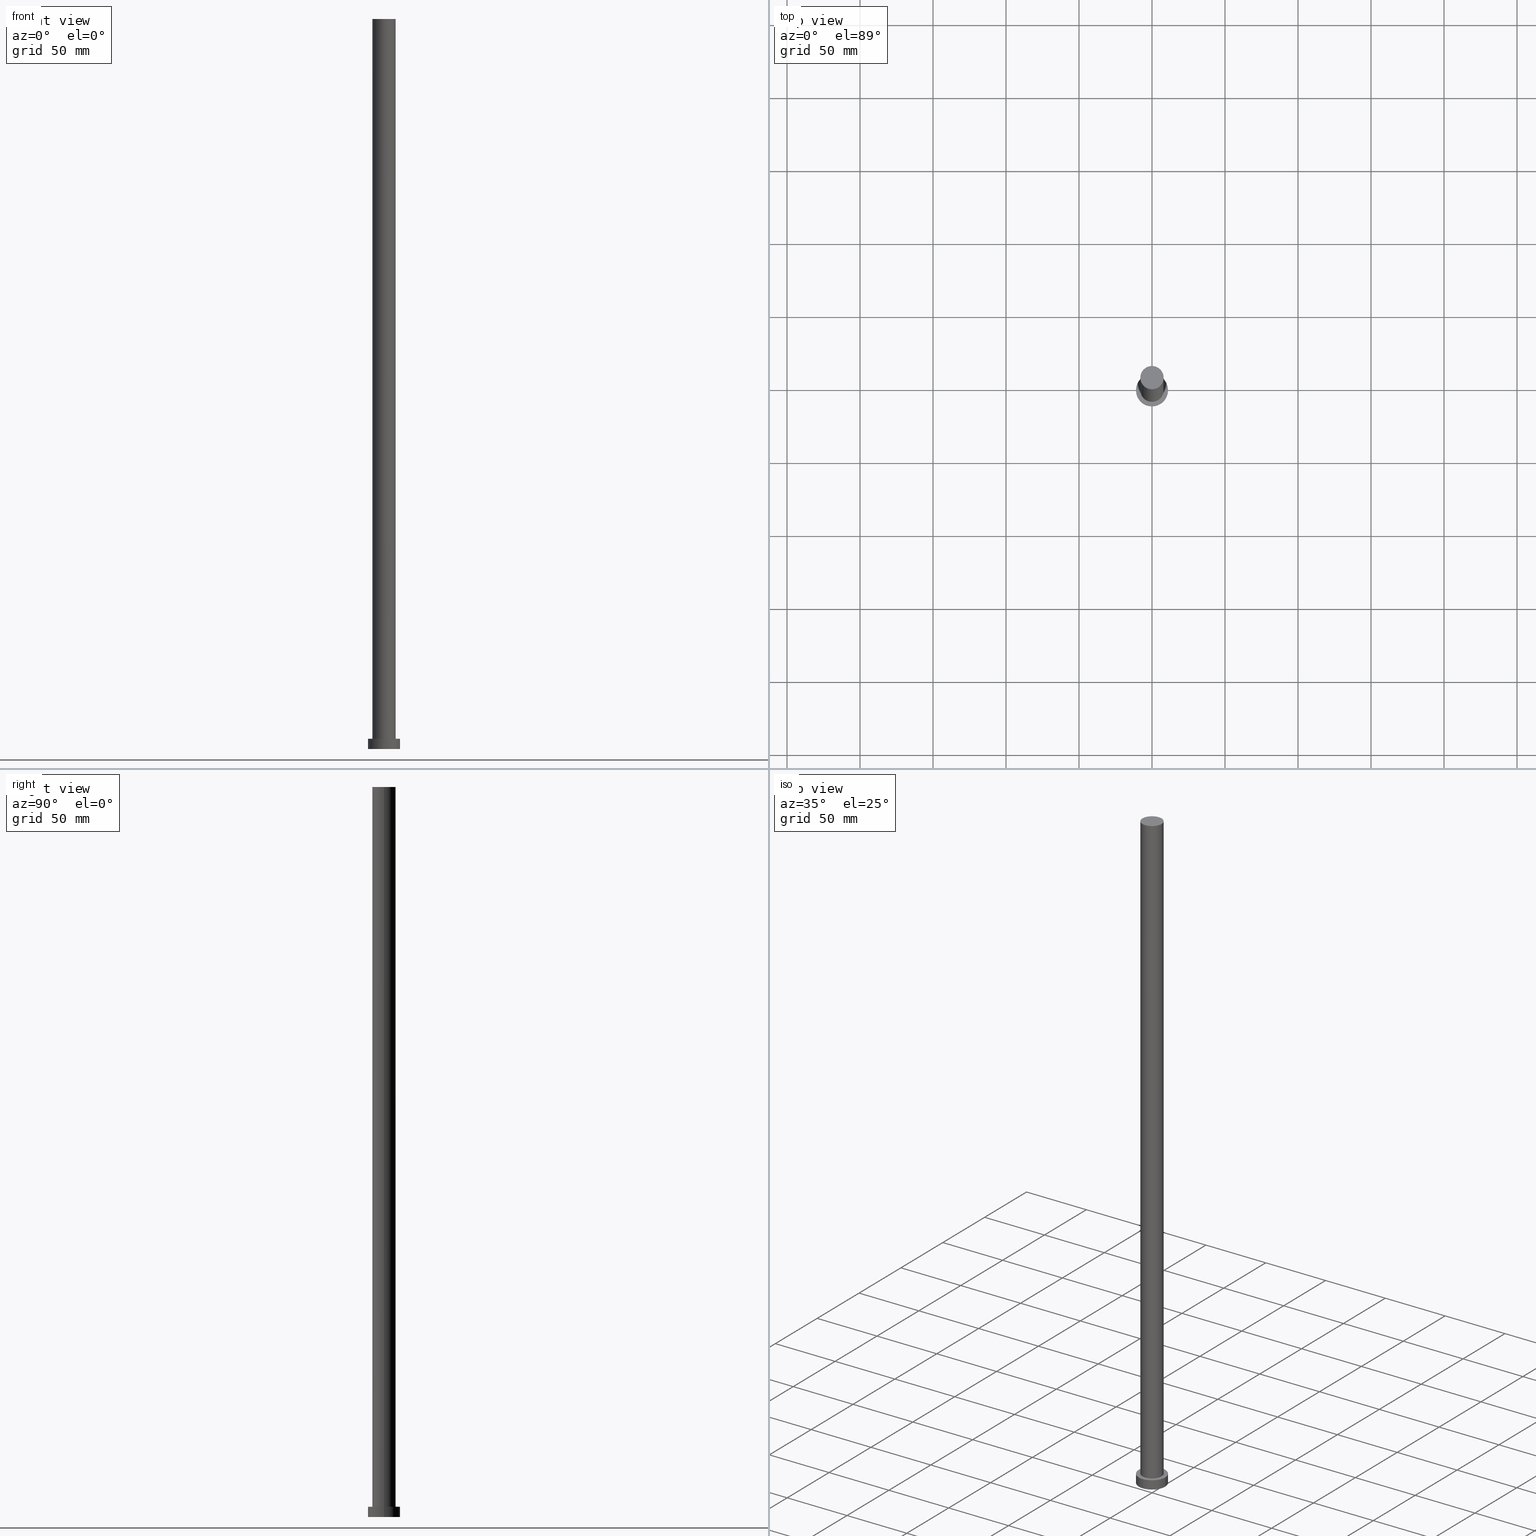
[diagram: canonical four-view strip — front | top / right | iso, engineering-drawing reading convention]
A machine part, canonical four-view strip (front | top / right | iso — engineering-drawing reading convention). The complete STEP part file that produces these views, byte-faithful:
ISO-10303-21;
HEADER;
FILE_DESCRIPTION (( 'STEP AP203' ),
    '1' );
FILE_NAME ('4d6a.STEP',
    '2023-02-12T10:43:09',
    ( '' ),
    ( '' ),
    'SwSTEP 2.0',
    'SolidWorks 2019',
    '' );
FILE_SCHEMA (( 'CONFIG_CONTROL_DESIGN' ));
ENDSEC;

DATA;
#1 = PERSON_AND_ORGANIZATION_ROLE ( 'creator' ) ;
#2 = CC_DESIGN_SECURITY_CLASSIFICATION ( #72, ( #66 ) ) ;
#3 = DATE_TIME_ROLE ( 'creation_date' ) ;
#4 = APPROVAL_PERSON_ORGANIZATION ( #105, #237, #182 ) ;
#5 = EDGE_CURVE ( 'NONE', #201, #11, #121, .T. ) ;
#6 = AXIS2_PLACEMENT_3D ( 'NONE', #30, #228, #52 ) ;
#7 = CARTESIAN_POINT ( 'NONE',  ( 8.000000000000000000, 9.797174393178825657E-16, 7.000000000000000000 ) ) ;
#8 = DIRECTION ( 'NONE',  ( 1.000000000000000000, 0.000000000000000000, 0.000000000000000000 ) ) ;
#9 = APPROVAL_PERSON_ORGANIZATION ( #88, #254, #101 ) ;
#10 = ORIENTED_EDGE ( 'NONE', *, *, #193, .F. ) ;
#11 = VERTEX_POINT ( 'NONE', #206 ) ;
#12 = EDGE_CURVE ( 'NONE', #122, #62, #212, .T. ) ;
#13 = VECTOR ( 'NONE', #27, 1000.000000000000000 ) ;
#14 = DIRECTION ( 'NONE',  ( 0.000000000000000000, 0.000000000000000000, 1.000000000000000000 ) ) ;
#15 = CIRCLE ( 'NONE', #170, 11.00000000000000000 ) ;
#16 = DIRECTION ( 'NONE',  ( 0.000000000000000000, 0.000000000000000000, 1.000000000000000000 ) ) ;
#17 = LOCAL_TIME ( 11, 43, 9.000000000000000000, #40 ) ;
#18 = PERSON_AND_ORGANIZATION_ROLE ( 'creator' ) ;
#19 = EDGE_LOOP ( 'NONE', ( #240, #221 ) ) ;
#20 = APPROVAL_ROLE ( '' ) ;
#21 = EDGE_LOOP ( 'NONE', ( #47, #215, #167, #91 ) ) ;
#22 = LOCAL_TIME ( 11, 43, 9.000000000000000000, #217 ) ;
#23 = APPROVAL_STATUS ( 'not_yet_approved' ) ;
#24 = ADVANCED_FACE ( 'NONE', ( #94 ), #250, .T. ) ;
#25 = CALENDAR_DATE ( 2023, 12, 2 ) ;
#26 = CARTESIAN_POINT ( 'NONE',  ( 0.000000000000000000, 0.000000000000000000, 500.0000000000000000 ) ) ;
#27 = DIRECTION ( 'NONE',  ( -0.000000000000000000, -0.000000000000000000, -1.000000000000000000 ) ) ;
#28 = AXIS2_PLACEMENT_3D ( 'NONE', #48, #196, #55 ) ;
#29 = CARTESIAN_POINT ( 'NONE',  ( 11.00000000000000000, 1.347111479062088405E-15, 7.000000000000000000 ) ) ;
#30 = CARTESIAN_POINT ( 'NONE',  ( 0.000000000000000000, 0.000000000000000000, 0.000000000000000000 ) ) ;
#31 = CARTESIAN_POINT ( 'NONE',  ( 0.000000000000000000, 0.000000000000000000, 0.000000000000000000 ) ) ;
#32 = LOCAL_TIME ( 11, 43, 9.000000000000000000, #102 ) ;
#33 = ORIENTED_EDGE ( 'NONE', *, *, #5, .F. ) ;
#34 = DIRECTION ( 'NONE',  ( -1.000000000000000000, 0.000000000000000000, 0.000000000000000000 ) ) ;
#35 = EDGE_CURVE ( 'NONE', #11, #201, #15, .T. ) ;
#36 = DIRECTION ( 'NONE',  ( 1.000000000000000000, 0.000000000000000000, 0.000000000000000000 ) ) ;
#37 = CIRCLE ( 'NONE', #195, 8.000000000000000000 ) ;
#38 =( LENGTH_UNIT ( ) NAMED_UNIT ( * ) SI_UNIT ( .MILLI., .METRE. ) );
#39 = ADVANCED_FACE ( 'NONE', ( #148 ), #245, .T. ) ;
#40 = COORDINATED_UNIVERSAL_TIME_OFFSET ( 1, 0, .AHEAD. ) ;
#41 = CC_DESIGN_APPROVAL ( #254, ( #66 ) ) ;
#42 = PERSON_AND_ORGANIZATION_ROLE ( 'design_owner' ) ;
#43 = VERTEX_POINT ( 'NONE', #128 ) ;
#44 = CARTESIAN_POINT ( 'NONE',  ( -8.000000000000000000, 0.000000000000000000, 500.0000000000000000 ) ) ;
#45 = PERSON_AND_ORGANIZATION_ROLE ( 'classification_officer' ) ;
#46 = APPLICATION_PROTOCOL_DEFINITION ( 'international standard', 'config_control_design', 1994, #133 ) ;
#47 = ORIENTED_EDGE ( 'NONE', *, *, #235, .F. ) ;
#48 = CARTESIAN_POINT ( 'NONE',  ( 0.000000000000000000, 0.000000000000000000, 500.0000000000000000 ) ) ;
#49 = CARTESIAN_POINT ( 'NONE',  ( 0.000000000000000000, 0.000000000000000000, 7.000000000000000000 ) ) ;
#50 = CIRCLE ( 'NONE', #147, 8.000000000000000000 ) ;
#51 = AXIS2_PLACEMENT_3D ( 'NONE', #152, #246, #69 ) ;
#52 = DIRECTION ( 'NONE',  ( 1.000000000000000000, 0.000000000000000000, 0.000000000000000000 ) ) ;
#53 = ORIENTED_EDGE ( 'NONE', *, *, #220, .T. ) ;
#54 = CARTESIAN_POINT ( 'NONE',  ( 0.000000000000000000, 0.000000000000000000, 500.0000000000000000 ) ) ;
#55 = DIRECTION ( 'NONE',  ( 1.000000000000000000, 0.000000000000000000, 0.000000000000000000 ) ) ;
#56 = EDGE_CURVE ( 'NONE', #144, #127, #37, .T. ) ;
#57 = MECHANICAL_CONTEXT ( 'NONE', #78, 'mechanical' ) ;
#58 = SHAPE_DEFINITION_REPRESENTATION ( #123, #115 ) ;
#59 = ORGANIZATION ( 'NEUR�EN�', 'NEUR�EN�', '' ) ;
#60 = EDGE_LOOP ( 'NONE', ( #178, #181 ) ) ;
#61 = APPROVAL_DATE_TIME ( #90, #95 ) ;
#62 = VERTEX_POINT ( 'NONE', #109 ) ;
#63 = DATE_AND_TIME ( #175, #32 ) ;
#64 = DIRECTION ( 'NONE',  ( -0.000000000000000000, -0.000000000000000000, -1.000000000000000000 ) ) ;
#65 = COORDINATED_UNIVERSAL_TIME_OFFSET ( 1, 0, .AHEAD. ) ;
#66 = PRODUCT_DEFINITION_FORMATION_WITH_SPECIFIED_SOURCE ( 'LIBOVOLN�', '', #160, .NOT_KNOWN. ) ;
#67 = ADVANCED_FACE ( 'NONE', ( #68, #189 ), #75, .T. ) ;
#68 = FACE_BOUND ( 'NONE', #60, .T. ) ;
#69 = DIRECTION ( 'NONE',  ( -1.000000000000000000, 0.000000000000000000, 0.000000000000000000 ) ) ;
#70 = EDGE_LOOP ( 'NONE', ( #111, #10, #229, #140 ) ) ;
#71 = EDGE_LOOP ( 'NONE', ( #242, #126, #203, #161 ) ) ;
#72 = SECURITY_CLASSIFICATION ( '', '', #243 ) ;
#73 = CARTESIAN_POINT ( 'NONE',  ( 11.00000000000000000, 1.347111479062088405E-15, 7.000000000000000000 ) ) ;
#74 = VECTOR ( 'NONE', #107, 1000.000000000000000 ) ;
#75 = PLANE ( 'NONE',  #227 ) ;
#76 = APPROVAL_STATUS ( 'not_yet_approved' ) ;
#77 = EDGE_CURVE ( 'NONE', #43, #127, #164, .T. ) ;
#78 = APPLICATION_CONTEXT ( 'configuration controlled 3d designs of mechanical parts and assemblies' ) ;
#79 = DIRECTION ( 'NONE',  ( 1.000000000000000000, 0.000000000000000000, -0.000000000000000000 ) ) ;
#80 = CALENDAR_DATE ( 2023, 12, 2 ) ;
#81 = APPROVAL_PERSON_ORGANIZATION ( #137, #95, #20 ) ;
#82 = EDGE_LOOP ( 'NONE', ( #210, #168, #87, #132 ) ) ;
#83 = EDGE_LOOP ( 'NONE', ( #53, #149 ) ) ;
#84 = AXIS2_PLACEMENT_3D ( 'NONE', #54, #187, #34 ) ;
#85 = DATE_TIME_ROLE ( 'classification_date' ) ;
#86 = DIRECTION ( 'NONE',  ( -0.000000000000000000, -0.000000000000000000, -1.000000000000000000 ) ) ;
#87 = ORIENTED_EDGE ( 'NONE', *, *, #5, .T. ) ;
#88 = PERSON_AND_ORGANIZATION ( #118, #59 ) ;
#89 = ADVANCED_FACE ( 'NONE', ( #241 ), #184, .T. ) ;
#90 = DATE_AND_TIME ( #239, #226 ) ;
#91 = ORIENTED_EDGE ( 'NONE', *, *, #35, .T. ) ;
#92 = ORIENTED_EDGE ( 'NONE', *, *, #35, .F. ) ;
#93 = CARTESIAN_POINT ( 'NONE',  ( -11.00000000000000000, 0.000000000000000000, 7.000000000000000000 ) ) ;
#94 = FACE_OUTER_BOUND ( 'NONE', #21, .T. ) ;
#95 = APPROVAL ( #157, 'NEUR�EN�' ) ;
#96 = CARTESIAN_POINT ( 'NONE',  ( 11.00000000000000000, 1.347111479062088405E-15, 0.000000000000000000 ) ) ;
#97 = PLANE ( 'NONE',  #159 ) ;
#98 = AXIS2_PLACEMENT_3D ( 'NONE', #166, #192, #8 ) ;
#99 = CARTESIAN_POINT ( 'NONE',  ( 0.000000000000000000, 0.000000000000000000, 7.000000000000000000 ) ) ;
#100 = CARTESIAN_POINT ( 'NONE',  ( 0.000000000000000000, 0.000000000000000000, 7.000000000000000000 ) ) ;
#101 = APPROVAL_ROLE ( '' ) ;
#102 = COORDINATED_UNIVERSAL_TIME_OFFSET ( 1, 0, .AHEAD. ) ;
#103 = EDGE_LOOP ( 'NONE', ( #92, #33 ) ) ;
#104 = DATE_AND_TIME ( #25, #17 ) ;
#105 = PERSON_AND_ORGANIZATION ( #118, #59 ) ;
#106 = CC_DESIGN_PERSON_AND_ORGANIZATION_ASSIGNMENT ( #255, #18, ( #150 ) ) ;
#107 = DIRECTION ( 'NONE',  ( -0.000000000000000000, -0.000000000000000000, -1.000000000000000000 ) ) ;
#108 = CC_DESIGN_APPROVAL ( #237, ( #150 ) ) ;
#109 = CARTESIAN_POINT ( 'NONE',  ( -11.00000000000000000, 0.000000000000000000, 7.000000000000000000 ) ) ;
#110 = MANIFOLD_SOLID_BREP ( 'P�idat vysunut�m3', #231 ) ;
#111 = ORIENTED_EDGE ( 'NONE', *, *, #177, .F. ) ;
#112 = FACE_OUTER_BOUND ( 'NONE', #103, .T. ) ;
#113 = LINE ( 'NONE', #73, #169 ) ;
#114 = CC_DESIGN_APPROVAL ( #95, ( #72 ) ) ;
#115 = ADVANCED_BREP_SHAPE_REPRESENTATION ( '4d6a', ( #110, #153 ), #214 ) ;
#116 = ADVANCED_FACE ( 'NONE', ( #142 ), #165, .T. ) ;
#117 = DIRECTION ( 'NONE',  ( 1.000000000000000000, 0.000000000000000000, -0.000000000000000000 ) ) ;
#118 = PERSON ( 'NEUR�EN�', 'NEUR�EN�', 'NEUR�EN�', ('NEUR�EN�'), ('NEUR�EN�'), ('NEUR�EN�') ) ;
#119 = CC_DESIGN_PERSON_AND_ORGANIZATION_ASSIGNMENT ( #162, #163, ( #66 ) ) ;
#120 = DATE_AND_TIME ( #143, #22 ) ;
#121 = CIRCLE ( 'NONE', #6, 11.00000000000000000 ) ;
#122 = VERTEX_POINT ( 'NONE', #29 ) ;
#123 = PRODUCT_DEFINITION_SHAPE ( 'NONE', 'NONE',  #150 ) ;
#124 = PERSON_AND_ORGANIZATION ( #118, #59 ) ;
#125 = CIRCLE ( 'NONE', #28, 8.000000000000000000 ) ;
#126 = ORIENTED_EDGE ( 'NONE', *, *, #177, .T. ) ;
#127 = VERTEX_POINT ( 'NONE', #186 ) ;
#128 = CARTESIAN_POINT ( 'NONE',  ( -8.000000000000000000, 0.000000000000000000, 500.0000000000000000 ) ) ;
#129 = CC_DESIGN_PERSON_AND_ORGANIZATION_ASSIGNMENT ( #183, #1, ( #66 ) ) ;
#130 = DIRECTION ( 'NONE',  ( 0.000000000000000000, 0.000000000000000000, 1.000000000000000000 ) ) ;
#131 = LINE ( 'NONE', #249, #74 ) ;
#132 = ORIENTED_EDGE ( 'NONE', *, *, #141, .F. ) ;
#133 = APPLICATION_CONTEXT ( 'configuration controlled 3d designs of mechanical parts and assemblies' ) ;
#134 =( NAMED_UNIT ( * ) SI_UNIT ( $, .STERADIAN. ) SOLID_ANGLE_UNIT ( ) );
#135 = EDGE_CURVE ( 'NONE', #218, #43, #238, .T. ) ;
#136 = DIRECTION ( 'NONE',  ( -0.000000000000000000, -0.000000000000000000, -1.000000000000000000 ) ) ;
#137 = PERSON_AND_ORGANIZATION ( #118, #59 ) ;
#138 = CC_DESIGN_DATE_AND_TIME_ASSIGNMENT ( #219, #85, ( #72 ) ) ;
#139 = PERSON_AND_ORGANIZATION ( #118, #59 ) ;
#140 = ORIENTED_EDGE ( 'NONE', *, *, #225, .T. ) ;
#141 = EDGE_CURVE ( 'NONE', #62, #11, #190, .T. ) ;
#142 = FACE_OUTER_BOUND ( 'NONE', #19, .T. ) ;
#143 = CALENDAR_DATE ( 2023, 12, 2 ) ;
#144 = VERTEX_POINT ( 'NONE', #7 ) ;
#145 = DIRECTION ( 'NONE',  ( 0.000000000000000000, 0.000000000000000000, 1.000000000000000000 ) ) ;
#146 = DIRECTION ( 'NONE',  ( 1.000000000000000000, 0.000000000000000000, 0.000000000000000000 ) ) ;
#147 = AXIS2_PLACEMENT_3D ( 'NONE', #252, #155, #36 ) ;
#148 = FACE_OUTER_BOUND ( 'NONE', #70, .T. ) ;
#149 = ORIENTED_EDGE ( 'NONE', *, *, #12, .T. ) ;
#150 = PRODUCT_DEFINITION ( 'NEZN�M�', '', #66, #224 ) ;
#151 = DIRECTION ( 'NONE',  ( 1.000000000000000000, 0.000000000000000000, 0.000000000000000000 ) ) ;
#152 = CARTESIAN_POINT ( 'NONE',  ( 0.000000000000000000, 0.000000000000000000, 7.000000000000000000 ) ) ;
#153 = AXIS2_PLACEMENT_3D ( 'NONE', #197, #174, #253 ) ;
#154 = CARTESIAN_POINT ( 'NONE',  ( 8.000000000000000000, 9.797174393178825657E-16, 500.0000000000000000 ) ) ;
#155 = DIRECTION ( 'NONE',  ( 0.000000000000000000, 0.000000000000000000, 1.000000000000000000 ) ) ;
#156 = DIRECTION ( 'NONE',  ( -0.000000000000000000, -0.000000000000000000, -1.000000000000000000 ) ) ;
#157 = APPROVAL_STATUS ( 'not_yet_approved' ) ;
#158 = CC_DESIGN_PERSON_AND_ORGANIZATION_ASSIGNMENT ( #124, #45, ( #72 ) ) ;
#159 = AXIS2_PLACEMENT_3D ( 'NONE', #191, #16, #117 ) ;
#160 = PRODUCT ( '4d6a', '4d6a', '', ( #57 ) ) ;
#161 = ORIENTED_EDGE ( 'NONE', *, *, #77, .F. ) ;
#162 = PERSON_AND_ORGANIZATION ( #118, #59 ) ;
#163 = PERSON_AND_ORGANIZATION_ROLE ( 'design_supplier' ) ;
#164 = LINE ( 'NONE', #44, #180 ) ;
#165 = PLANE ( 'NONE',  #247 ) ;
#166 = CARTESIAN_POINT ( 'NONE',  ( 0.000000000000000000, 0.000000000000000000, 7.000000000000000000 ) ) ;
#167 = ORIENTED_EDGE ( 'NONE', *, *, #141, .T. ) ;
#168 = ORIENTED_EDGE ( 'NONE', *, *, #235, .T. ) ;
#169 = VECTOR ( 'NONE', #156, 1000.000000000000000 ) ;
#170 = AXIS2_PLACEMENT_3D ( 'NONE', #31, #130, #230 ) ;
#171 = DIRECTION ( 'NONE',  ( 1.000000000000000000, 0.000000000000000000, 0.000000000000000000 ) ) ;
#172 = FACE_OUTER_BOUND ( 'NONE', #82, .T. ) ;
#173 = AXIS2_PLACEMENT_3D ( 'NONE', #99, #14, #171 ) ;
#174 = DIRECTION ( 'NONE',  ( 0.000000000000000000, 0.000000000000000000, 1.000000000000000000 ) ) ;
#175 = CALENDAR_DATE ( 2023, 12, 2 ) ;
#176 = APPROVAL_DATE_TIME ( #104, #237 ) ;
#177 = EDGE_CURVE ( 'NONE', #218, #144, #131, .T. ) ;
#178 = ORIENTED_EDGE ( 'NONE', *, *, #225, .F. ) ;
#179 = COORDINATED_UNIVERSAL_TIME_OFFSET ( 1, 0, .AHEAD. ) ;
#180 = VECTOR ( 'NONE', #86, 1000.000000000000000 ) ;
#181 = ORIENTED_EDGE ( 'NONE', *, *, #56, .F. ) ;
#182 = APPROVAL_ROLE ( '' ) ;
#183 = PERSON_AND_ORGANIZATION ( #118, #59 ) ;
#184 = CYLINDRICAL_SURFACE ( 'NONE', #207, 8.000000000000000000 ) ;
#185 = CARTESIAN_POINT ( 'NONE',  ( 0.000000000000000000, 0.000000000000000000, 500.0000000000000000 ) ) ;
#186 = CARTESIAN_POINT ( 'NONE',  ( -8.000000000000000000, 0.000000000000000000, 7.000000000000000000 ) ) ;
#187 = DIRECTION ( 'NONE',  ( -0.000000000000000000, -0.000000000000000000, -1.000000000000000000 ) ) ;
#188 = AXIS2_PLACEMENT_3D ( 'NONE', #100, #136, #213 ) ;
#189 = FACE_OUTER_BOUND ( 'NONE', #83, .T. ) ;
#190 = LINE ( 'NONE', #93, #13 ) ;
#191 = CARTESIAN_POINT ( 'NONE',  ( 0.000000000000000000, 0.000000000000000000, 0.000000000000000000 ) ) ;
#192 = DIRECTION ( 'NONE',  ( 0.000000000000000000, 0.000000000000000000, 1.000000000000000000 ) ) ;
#193 = EDGE_CURVE ( 'NONE', #43, #218, #125, .T. ) ;
#194 = LOCAL_TIME ( 11, 43, 9.000000000000000000, #65 ) ;
#195 = AXIS2_PLACEMENT_3D ( 'NONE', #49, #208, #146 ) ;
#196 = DIRECTION ( 'NONE',  ( 0.000000000000000000, 0.000000000000000000, 1.000000000000000000 ) ) ;
#197 = CARTESIAN_POINT ( 'NONE',  ( 0.000000000000000000, 0.000000000000000000, 0.000000000000000000 ) ) ;
#198 = CC_DESIGN_PERSON_AND_ORGANIZATION_ASSIGNMENT ( #139, #42, ( #160 ) ) ;
#199 = DIRECTION ( 'NONE',  ( 0.000000000000000000, 0.000000000000000000, 1.000000000000000000 ) ) ;
#200 = ADVANCED_FACE ( 'NONE', ( #112 ), #97, .F. ) ;
#201 = VERTEX_POINT ( 'NONE', #96 ) ;
#202 = APPROVAL_DATE_TIME ( #63, #254 ) ;
#203 = ORIENTED_EDGE ( 'NONE', *, *, #56, .T. ) ;
#204 = DIRECTION ( 'NONE',  ( 1.000000000000000000, 0.000000000000000000, -0.000000000000000000 ) ) ;
#205 = ADVANCED_FACE ( 'NONE', ( #172 ), #233, .T. ) ;
#206 = CARTESIAN_POINT ( 'NONE',  ( -11.00000000000000000, 0.000000000000000000, 0.000000000000000000 ) ) ;
#207 = AXIS2_PLACEMENT_3D ( 'NONE', #26, #64, #222 ) ;
#208 = DIRECTION ( 'NONE',  ( 0.000000000000000000, 0.000000000000000000, 1.000000000000000000 ) ) ;
#209 = AXIS2_PLACEMENT_3D ( 'NONE', #185, #145, #151 ) ;
#210 = ORIENTED_EDGE ( 'NONE', *, *, #12, .F. ) ;
#211 = PRODUCT_RELATED_PRODUCT_CATEGORY ( 'detail', '', ( #160 ) ) ;
#212 = CIRCLE ( 'NONE', #98, 11.00000000000000000 ) ;
#213 = DIRECTION ( 'NONE',  ( -1.000000000000000000, 0.000000000000000000, 0.000000000000000000 ) ) ;
#214 =( GEOMETRIC_REPRESENTATION_CONTEXT ( 3 ) GLOBAL_UNCERTAINTY_ASSIGNED_CONTEXT ( ( #248 ) ) GLOBAL_UNIT_ASSIGNED_CONTEXT ( ( #38, #236, #134 ) ) REPRESENTATION_CONTEXT ( 'NONE', 'WORKASPACE' ) );
#215 = ORIENTED_EDGE ( 'NONE', *, *, #220, .F. ) ;
#216 = CC_DESIGN_DATE_AND_TIME_ASSIGNMENT ( #120, #3, ( #150 ) ) ;
#217 = COORDINATED_UNIVERSAL_TIME_OFFSET ( 1, 0, .AHEAD. ) ;
#218 = VERTEX_POINT ( 'NONE', #154 ) ;
#219 = DATE_AND_TIME ( #80, #194 ) ;
#220 = EDGE_CURVE ( 'NONE', #62, #122, #251, .T. ) ;
#221 = ORIENTED_EDGE ( 'NONE', *, *, #135, .T. ) ;
#222 = DIRECTION ( 'NONE',  ( -1.000000000000000000, 0.000000000000000000, 0.000000000000000000 ) ) ;
#223 = CARTESIAN_POINT ( 'NONE',  ( 0.000000000000000000, 0.000000000000000000, 500.0000000000000000 ) ) ;
#224 = DESIGN_CONTEXT ( 'detailed design', #133, 'design' ) ;
#225 = EDGE_CURVE ( 'NONE', #127, #144, #50, .T. ) ;
#226 = LOCAL_TIME ( 11, 43, 9.000000000000000000, #179 ) ;
#227 = AXIS2_PLACEMENT_3D ( 'NONE', #234, #244, #79 ) ;
#228 = DIRECTION ( 'NONE',  ( 0.000000000000000000, 0.000000000000000000, 1.000000000000000000 ) ) ;
#229 = ORIENTED_EDGE ( 'NONE', *, *, #77, .T. ) ;
#230 = DIRECTION ( 'NONE',  ( 1.000000000000000000, 0.000000000000000000, 0.000000000000000000 ) ) ;
#231 = CLOSED_SHELL ( 'NONE', ( #89, #205, #24, #67, #200, #39, #116 ) ) ;
#232 = APPLICATION_PROTOCOL_DEFINITION ( 'international standard', 'config_control_design', 1994, #78 ) ;
#233 = CYLINDRICAL_SURFACE ( 'NONE', #188, 11.00000000000000000 ) ;
#234 = CARTESIAN_POINT ( 'NONE',  ( 0.000000000000000000, 0.000000000000000000, 7.000000000000000000 ) ) ;
#235 = EDGE_CURVE ( 'NONE', #122, #201, #113, .T. ) ;
#236 =( NAMED_UNIT ( * ) PLANE_ANGLE_UNIT ( ) SI_UNIT ( $, .RADIAN. ) );
#237 = APPROVAL ( #23, 'NEUR�EN�' ) ;
#238 = CIRCLE ( 'NONE', #209, 8.000000000000000000 ) ;
#239 = CALENDAR_DATE ( 2023, 12, 2 ) ;
#240 = ORIENTED_EDGE ( 'NONE', *, *, #193, .T. ) ;
#241 = FACE_OUTER_BOUND ( 'NONE', #71, .T. ) ;
#242 = ORIENTED_EDGE ( 'NONE', *, *, #135, .F. ) ;
#243 = SECURITY_CLASSIFICATION_LEVEL ( 'unclassified' ) ;
#244 = DIRECTION ( 'NONE',  ( 0.000000000000000000, 0.000000000000000000, 1.000000000000000000 ) ) ;
#245 = CYLINDRICAL_SURFACE ( 'NONE', #84, 8.000000000000000000 ) ;
#246 = DIRECTION ( 'NONE',  ( -0.000000000000000000, -0.000000000000000000, -1.000000000000000000 ) ) ;
#247 = AXIS2_PLACEMENT_3D ( 'NONE', #223, #199, #204 ) ;
#248 = UNCERTAINTY_MEASURE_WITH_UNIT (LENGTH_MEASURE( 1.000000000000000082E-05 ), #38, 'distance_accuracy_value', 'NONE');
#249 = CARTESIAN_POINT ( 'NONE',  ( 8.000000000000000000, 9.797174393178825657E-16, 500.0000000000000000 ) ) ;
#250 = CYLINDRICAL_SURFACE ( 'NONE', #51, 11.00000000000000000 ) ;
#251 = CIRCLE ( 'NONE', #173, 11.00000000000000000 ) ;
#252 = CARTESIAN_POINT ( 'NONE',  ( 0.000000000000000000, 0.000000000000000000, 7.000000000000000000 ) ) ;
#253 = DIRECTION ( 'NONE',  ( 1.000000000000000000, 0.000000000000000000, 0.000000000000000000 ) ) ;
#254 = APPROVAL ( #76, 'NEUR�EN�' ) ;
#255 = PERSON_AND_ORGANIZATION ( #118, #59 ) ;
ENDSEC;
END-ISO-10303-21;
